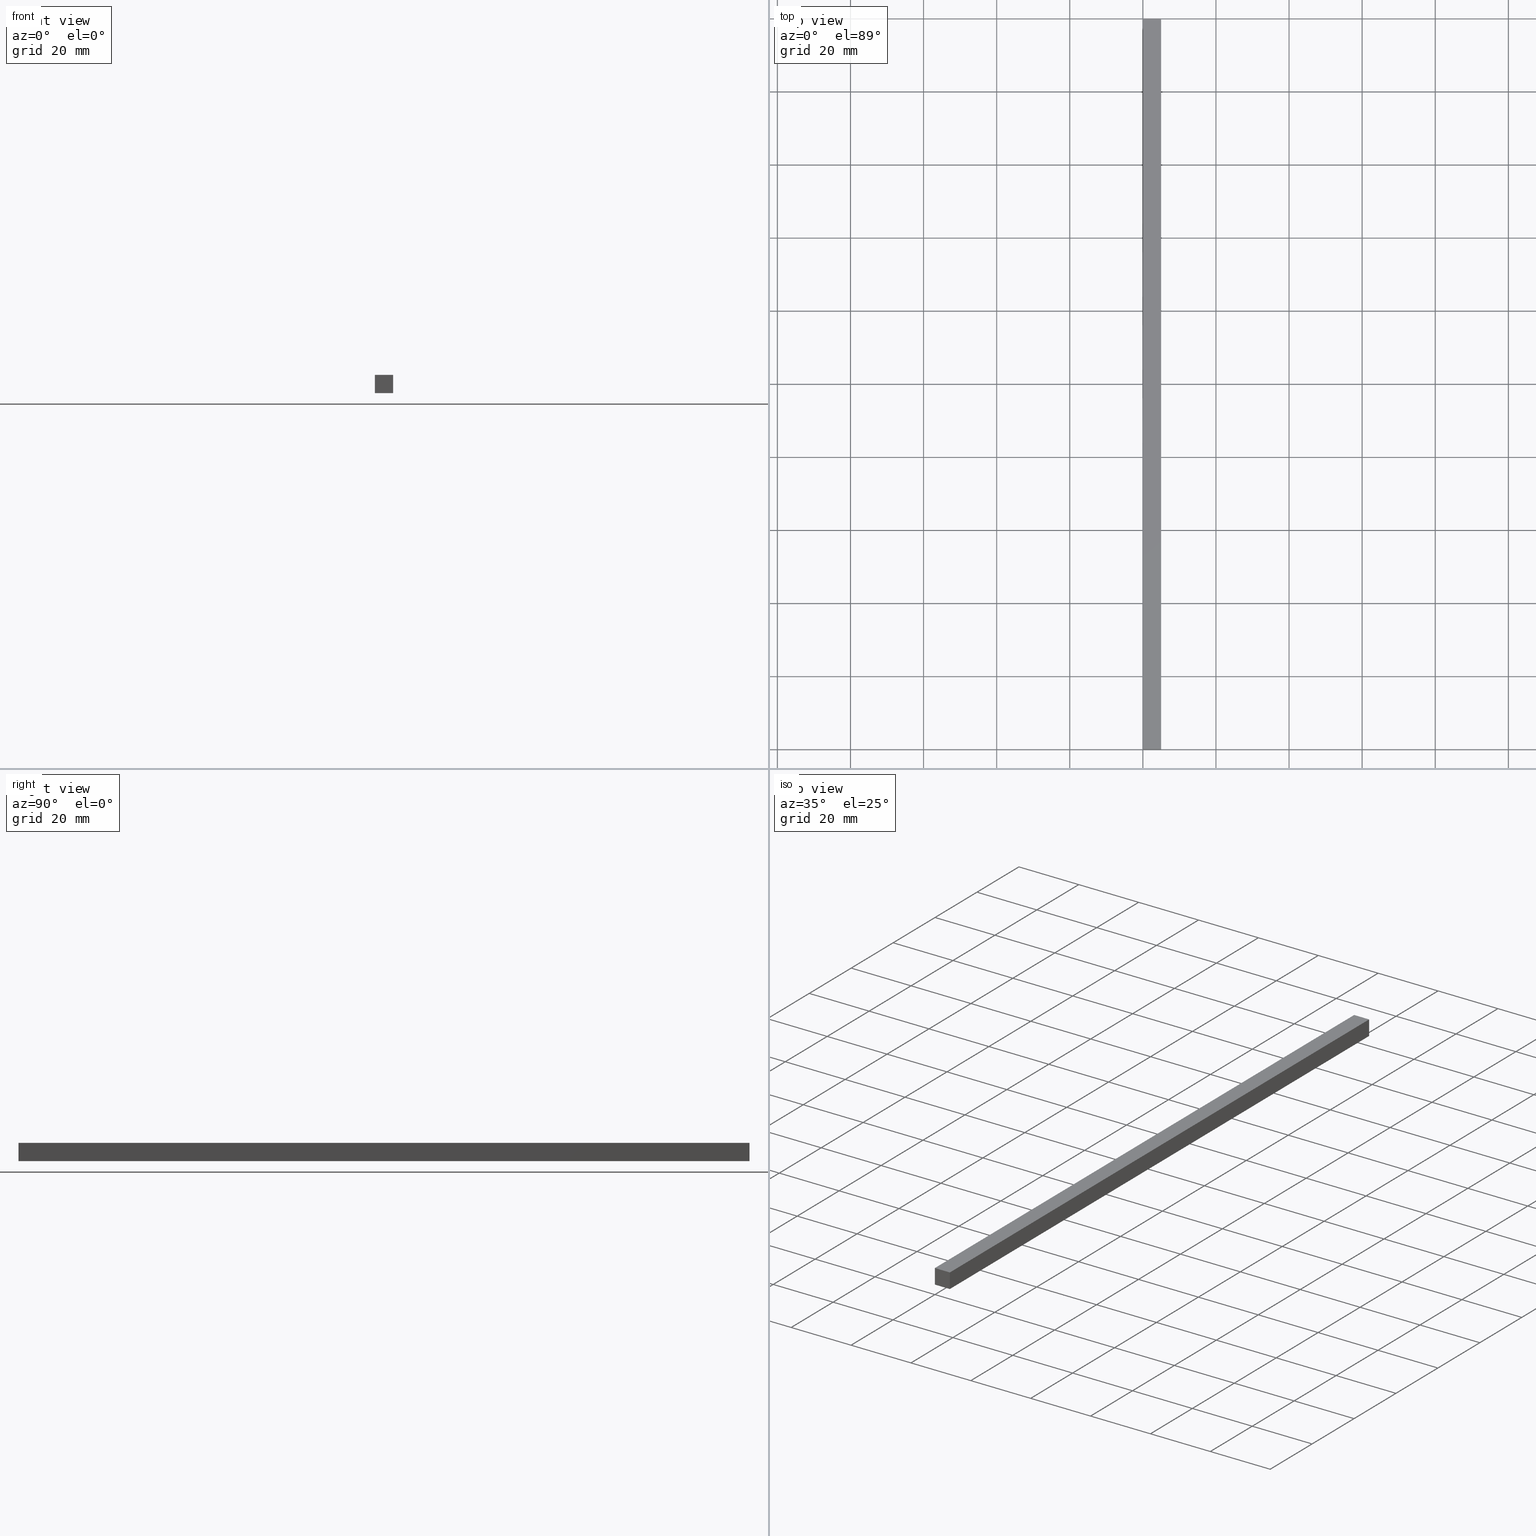
[diagram: canonical four-view strip — front | top / right | iso, engineering-drawing reading convention]
A machine part, canonical four-view strip (front | top / right | iso — engineering-drawing reading convention). The complete STEP part file that produces these views, byte-faithful:
ISO-10303-21;
HEADER;
FILE_DESCRIPTION (( 'STEP AP214' ),
    '1' );
FILE_NAME ('TM_340W_1.STEP',
    '2016-05-09T07:20:32',
    ( '' ),
    ( '' ),
    'SwSTEP 2.0',
    'SolidWorks 2015',
    '' );
FILE_SCHEMA (( 'AUTOMOTIVE_DESIGN' ));
ENDSEC;

DATA;
#1 = DIRECTION ( 'NONE',  ( -0.0000000000000000000, 1.000000000000000000, 0.0000000000000000000 ) ) ;
#2 = EDGE_CURVE ( 'NONE', #67, #123, #83, .T. ) ;
#3 = ORIENTED_EDGE ( 'NONE', *, *, #2, .F. ) ;
#4 = SHAPE_DEFINITION_REPRESENTATION ( #61, #196 ) ;
#5 = DIRECTION ( 'NONE',  ( -1.000000000000000000, 0.0000000000000000000, 0.0000000000000000000 ) ) ;
#6 = PRODUCT_DEFINITION_SHAPE ( 'NONE', 'NONE',  #239 ) ;
#7 = LINE ( 'NONE', #215, #227 ) ;
#8 = VECTOR ( 'NONE', #167, 1000.000000000000000 ) ;
#9 = AXIS2_PLACEMENT_3D ( 'NONE', #131, #205, #14 ) ;
#10 = DIRECTION ( 'NONE',  ( -0.0000000000000000000, 1.000000000000000000, 0.0000000000000000000 ) ) ;
#11 = CARTESIAN_POINT ( 'NONE',  ( 0.0000000000000000000, 0.0000000000000000000, 0.0000000000000000000 ) ) ;
#12 = ORIENTED_EDGE ( 'NONE', *, *, #87, .F. ) ;
#13 = EDGE_CURVE ( 'NONE', #67, #121, #92, .T. ) ;
#14 = DIRECTION ( 'NONE',  ( 1.000000000000000000, 0.0000000000000000000, 0.0000000000000000000 ) ) ;
#15 = FILL_AREA_STYLE ('',( #101 ) ) ;
#16 = EDGE_CURVE ( 'NONE', #121, #159, #7, .T. ) ;
#17 =( REPRESENTATION_RELATIONSHIP ('NONE','NONE', #230, #196 ) REPRESENTATION_RELATIONSHIP_WITH_TRANSFORMATION ( #163 )SHAPE_REPRESENTATION_RELATIONSHIP( ) );
#18 = CARTESIAN_POINT ( 'NONE',  ( 5.000000000000000000, 1000.000000000000000, 0.0000000000000000000 ) ) ;
#19 = SURFACE_SIDE_STYLE ('',( #172 ) ) ;
#20 = CARTESIAN_POINT ( 'NONE',  ( 0.0000000000000000000, 0.0000000000000000000, 0.0000000000000000000 ) ) ;
#21 = STYLED_ITEM ( 'NONE', ( #22 ), #184 ) ;
#22 = PRESENTATION_STYLE_ASSIGNMENT (( #50 ) ) ;
#23 = CARTESIAN_POINT ( 'NONE',  ( 5.000000000000000000, 0.0000000000000000000, 0.0000000000000000000 ) ) ;
#24 = EDGE_CURVE ( 'NONE', #124, #67, #89, .T. ) ;
#25 = ORIENTED_EDGE ( 'NONE', *, *, #16, .T. ) ;
#26 = EDGE_CURVE ( 'NONE', #121, #142, #64, .T. ) ;
#27 = DIRECTION ( 'NONE',  ( 0.0000000000000000000, 0.0000000000000000000, 1.000000000000000000 ) ) ;
#28 = PLANE ( 'NONE',  #140 ) ;
#29 = EDGE_LOOP ( 'NONE', ( #155, #3, #198, #216 ) ) ;
#30 = PRESENTATION_LAYER_ASSIGNMENT (  '', '', ( #21 ) ) ;
#31 = CARTESIAN_POINT ( 'NONE',  ( 0.0000000000000000000, 0.0000000000000000000, 0.0000000000000000000 ) ) ;
#32 = APPLICATION_PROTOCOL_DEFINITION ( 'draft international standard', 'automotive_design', 1998, #129 ) ;
#33 = FACE_OUTER_BOUND ( 'NONE', #194, .T. ) ;
#34 = DIRECTION ( 'NONE',  ( 0.0000000000000000000, -1.000000000000000000, 0.0000000000000000000 ) ) ;
#35 = CARTESIAN_POINT ( 'NONE',  ( 5.000000000000000000, 0.0000000000000000000, 5.000000000000000000 ) ) ;
#36 = CARTESIAN_POINT ( 'NONE',  ( 0.0000000000000000000, 0.0000000000000000000, 0.0000000000000000000 ) ) ;
#37 = DIRECTION ( 'NONE',  ( 1.000000000000000000, 0.0000000000000000000, 0.0000000000000000000 ) ) ;
#38 = UNCERTAINTY_MEASURE_WITH_UNIT (LENGTH_MEASURE( 1.000000000000000100E-005 ), #117, 'distance_accuracy_value', 'NONE');
#39 = SURFACE_STYLE_FILL_AREA ( #15 ) ;
#40 =( LENGTH_UNIT ( ) NAMED_UNIT ( * ) SI_UNIT ( .MILLI., .METRE. ) );
#41 = EDGE_CURVE ( 'NONE', #142, #186, #173, .T. ) ;
#42 = ORIENTED_EDGE ( 'NONE', *, *, #220, .F. ) ;
#43 = LINE ( 'NONE', #18, #8 ) ;
#44 = MECHANICAL_DESIGN_GEOMETRIC_PRESENTATION_REPRESENTATION (  '', ( #21 ), #62 ) ;
#45 = ORIENTED_EDGE ( 'NONE', *, *, #177, .T. ) ;
#46 = LINE ( 'NONE', #35, #154 ) ;
#47 = SHAPE_REPRESENTATION_RELATIONSHIP ( 'NONE' , 'NONE' ,  #196, #184 ) ;
#48 = ADVANCED_FACE ( 'NONE', ( #222 ), #132, .T. ) ;
#49 =( LENGTH_UNIT ( ) NAMED_UNIT ( * ) SI_UNIT ( .MILLI., .METRE. ) );
#50 = SURFACE_STYLE_USAGE ( .BOTH. , #82 ) ;
#51 = SHAPE_DEFINITION_REPRESENTATION ( #133, #230 ) ;
#52 = DIRECTION ( 'NONE',  ( 0.0000000000000000000, 0.0000000000000000000, -1.000000000000000000 ) ) ;
#53 = ORIENTED_EDGE ( 'NONE', *, *, #41, .F. ) ;
#54 = FACE_OUTER_BOUND ( 'NONE', #103, .T. ) ;
#55 = PLANE ( 'NONE',  #188 ) ;
#56 = EDGE_CURVE ( 'NONE', #159, #186, #84, .T. ) ;
#57 = PRODUCT_CONTEXT ( 'NONE', #202, 'mechanical' ) ;
#58 = ORIENTED_EDGE ( 'NONE', *, *, #177, .F. ) ;
#59 = DIRECTION ( 'NONE',  ( 0.0000000000000000000, 0.0000000000000000000, -1.000000000000000000 ) ) ;
#60 = DIRECTION ( 'NONE',  ( 0.0000000000000000000, 0.0000000000000000000, -1.000000000000000000 ) ) ;
#61 = PRODUCT_DEFINITION_SHAPE ( 'NONE', 'NONE',  #144 ) ;
#62 =( GEOMETRIC_REPRESENTATION_CONTEXT ( 3 ) GLOBAL_UNCERTAINTY_ASSIGNED_CONTEXT ( ( #157 ) ) GLOBAL_UNIT_ASSIGNED_CONTEXT ( ( #49, #195, #127 ) ) REPRESENTATION_CONTEXT ( 'NONE', 'WORKASPACE' ) );
#63 = CARTESIAN_POINT ( 'NONE',  ( 5.000000000000000000, 1000.000000000000000, 5.000000000000000000 ) ) ;
#64 = LINE ( 'NONE', #126, #182 ) ;
#65 = FACE_OUTER_BOUND ( 'NONE', #156, .T. ) ;
#66 = CLOSED_SHELL ( 'NONE', ( #70, #122, #77, #73, #48, #98 ) ) ;
#67 = VERTEX_POINT ( 'NONE', #149 ) ;
#68 = AXIS2_PLACEMENT_3D ( 'NONE', #190, #10, #214 ) ;
#69 = UNCERTAINTY_MEASURE_WITH_UNIT (LENGTH_MEASURE( 1.000000000000000100E-005 ), #40, 'distance_accuracy_value', 'NONE');
#70 = ADVANCED_FACE ( 'NONE', ( #33 ), #85, .F. ) ;
#71 = VECTOR ( 'NONE', #76, 1000.000000000000000 ) ;
#72 = ORIENTED_EDGE ( 'NONE', *, *, #2, .T. ) ;
#73 = ADVANCED_FACE ( 'NONE', ( #65 ), #113, .F. ) ;
#74 = CARTESIAN_POINT ( 'NONE',  ( 5.000000000000000000, 200.0000000000000000, 5.000000000000000000 ) ) ;
#75 = PRODUCT_DEFINITION_CONTEXT ( 'detailed design', #148, 'design' ) ;
#76 = DIRECTION ( 'NONE',  ( 0.0000000000000000000, -1.000000000000000000, 0.0000000000000000000 ) ) ;
#77 = ADVANCED_FACE ( 'NONE', ( #235 ), #28, .F. ) ;
#78 = CARTESIAN_POINT ( 'NONE',  ( 5.000000000000000000, 1000.000000000000000, 0.0000000000000000000 ) ) ;
#79 = LINE ( 'NONE', #143, #209 ) ;
#80 = DIRECTION ( 'NONE',  ( 0.0000000000000000000, 0.0000000000000000000, 1.000000000000000000 ) ) ;
#81 = COLOUR_RGB ( '',0.7921568627450980000, 0.8196078431372548800, 0.9333333333333333500 ) ;
#82 = SURFACE_SIDE_STYLE ('',( #39 ) ) ;
#83 = LINE ( 'NONE', #174, #211 ) ;
#84 = LINE ( 'NONE', #63, #71 ) ;
#85 = PLANE ( 'NONE',  #94 ) ;
#86 = ORIENTED_EDGE ( 'NONE', *, *, #13, .T. ) ;
#87 = EDGE_CURVE ( 'NONE', #124, #108, #43, .T. ) ;
#88 = COLOUR_RGB ( '',0.7921568627450980000, 0.8196078431372548800, 0.9333333333333333500 ) ;
#89 = LINE ( 'NONE', #217, #128 ) ;
#90 = ORIENTED_EDGE ( 'NONE', *, *, #26, .T. ) ;
#91 = VECTOR ( 'NONE', #115, 1000.000000000000000 ) ;
#92 = LINE ( 'NONE', #150, #105 ) ;
#93 = SURFACE_STYLE_USAGE ( .BOTH. , #19 ) ;
#94 = AXIS2_PLACEMENT_3D ( 'NONE', #219, #200, #5 ) ;
#95 = PRESENTATION_STYLE_ASSIGNMENT (( #93 ) ) ;
#96 = FILL_AREA_STYLE_COLOUR ( '', #81 ) ;
#97 =( NAMED_UNIT ( * ) SI_UNIT ( $, .STERADIAN. ) SOLID_ANGLE_UNIT ( ) );
#98 = ADVANCED_FACE ( 'NONE', ( #54 ), #162, .F. ) ;
#99 = VECTOR ( 'NONE', #59, 1000.000000000000000 ) ;
#100 = EDGE_CURVE ( 'NONE', #186, #108, #46, .T. ) ;
#101 = FILL_AREA_STYLE_COLOUR ( '', #88 ) ;
#102 =( NAMED_UNIT ( * ) PLANE_ANGLE_UNIT ( ) SI_UNIT ( $, .RADIAN. ) );
#103 = EDGE_LOOP ( 'NONE', ( #53, #192, #42, #104 ) ) ;
#104 = ORIENTED_EDGE ( 'NONE', *, *, #100, .F. ) ;
#105 = VECTOR ( 'NONE', #189, 1000.000000000000000 ) ;
#106 = AXIS2_PLACEMENT_3D ( 'NONE', #31, #224, #130 ) ;
#107 = PRODUCT ( 'rubber foam', 'rubber foam', '', ( #57 ) ) ;
#108 = VERTEX_POINT ( 'NONE', #23 ) ;
#109 = CARTESIAN_POINT ( 'NONE',  ( 0.0000000000000000000, 0.0000000000000000000, 0.0000000000000000000 ) ) ;
#110 = AXIS2_PLACEMENT_3D ( 'NONE', #36, #185, #207 ) ;
#111 = DIRECTION ( 'NONE',  ( 0.0000000000000000000, 0.0000000000000000000, 1.000000000000000000 ) ) ;
#112 = EDGE_LOOP ( 'NONE', ( #231, #12, #58, #146 ) ) ;
#113 = PLANE ( 'NONE',  #118 ) ;
#114 = APPLICATION_CONTEXT ( 'automotive_design' ) ;
#115 = DIRECTION ( 'NONE',  ( 1.000000000000000000, 0.0000000000000000000, 0.0000000000000000000 ) ) ;
#116 = ORIENTED_EDGE ( 'NONE', *, *, #26, .F. ) ;
#117 =( LENGTH_UNIT ( ) NAMED_UNIT ( * ) SI_UNIT ( .MILLI., .METRE. ) );
#118 = AXIS2_PLACEMENT_3D ( 'NONE', #145, #201, #60 ) ;
#119 = CARTESIAN_POINT ( 'NONE',  ( 0.0000000000000000000, 0.0000000000000000000, 5.000000000000000000 ) ) ;
#120 = UNCERTAINTY_MEASURE_WITH_UNIT (LENGTH_MEASURE( 1.000000000000000100E-005 ), #160, 'distance_accuracy_value', 'NONE');
#121 = VERTEX_POINT ( 'NONE', #171 ) ;
#122 = ADVANCED_FACE ( 'NONE', ( #213 ), #55, .F. ) ;
#123 = VERTEX_POINT ( 'NONE', #11 ) ;
#124 = VERTEX_POINT ( 'NONE', #223 ) ;
#125 =( GEOMETRIC_REPRESENTATION_CONTEXT ( 3 ) GLOBAL_UNCERTAINTY_ASSIGNED_CONTEXT ( ( #69 ) ) GLOBAL_UNIT_ASSIGNED_CONTEXT ( ( #40, #158, #225 ) ) REPRESENTATION_CONTEXT ( 'NONE', 'WORKASPACE' ) );
#126 = CARTESIAN_POINT ( 'NONE',  ( 0.0000000000000000000, 1000.000000000000000, 5.000000000000000000 ) ) ;
#127 =( NAMED_UNIT ( * ) SI_UNIT ( $, .STERADIAN. ) SOLID_ANGLE_UNIT ( ) );
#128 = VECTOR ( 'NONE', #147, 1000.000000000000000 ) ;
#129 = APPLICATION_CONTEXT ( 'automotive_design' ) ;
#130 = DIRECTION ( 'NONE',  ( 1.000000000000000000, 0.0000000000000000000, 0.0000000000000000000 ) ) ;
#131 = CARTESIAN_POINT ( 'NONE',  ( 0.0000000000000000000, 0.0000000000000000000, 0.0000000000000000000 ) ) ;
#132 = PLANE ( 'NONE',  #68 ) ;
#133 = PRODUCT_DEFINITION_SHAPE ( 'NONE', 'NONE',  #175 ) ;
#134 = AXIS2_PLACEMENT_3D ( 'NONE', #203, #80, #168 ) ;
#135 = ORIENTED_EDGE ( 'NONE', *, *, #24, .T. ) ;
#136 = LINE ( 'NONE', #233, #99 ) ;
#137 = VECTOR ( 'NONE', #111, 1000.000000000000000 ) ;
#138 = ORIENTED_EDGE ( 'NONE', *, *, #232, .T. ) ;
#139 = EDGE_LOOP ( 'NONE', ( #25, #45, #135, #86 ) ) ;
#140 = AXIS2_PLACEMENT_3D ( 'NONE', #78, #27, #212 ) ;
#141 = CARTESIAN_POINT ( 'NONE',  ( 0.0000000000000000000, 0.0000000000000000000, 5.000000000000000000 ) ) ;
#142 = VERTEX_POINT ( 'NONE', #141 ) ;
#143 = CARTESIAN_POINT ( 'NONE',  ( 5.000000000000000000, 0.0000000000000000000, 0.0000000000000000000 ) ) ;
#144 = PRODUCT_DEFINITION ( 'UNKNOWN', '', #208, #236 ) ;
#145 = CARTESIAN_POINT ( 'NONE',  ( 0.0000000000000000000, 1000.000000000000000, 0.0000000000000000000 ) ) ;
#146 = ORIENTED_EDGE ( 'NONE', *, *, #56, .T. ) ;
#147 = DIRECTION ( 'NONE',  ( -1.000000000000000000, 0.0000000000000000000, 0.0000000000000000000 ) ) ;
#148 = APPLICATION_CONTEXT ( 'automotive_design' ) ;
#149 = CARTESIAN_POINT ( 'NONE',  ( 0.0000000000000000000, 200.0000000000000000, 0.0000000000000000000 ) ) ;
#150 = CARTESIAN_POINT ( 'NONE',  ( 0.0000000000000000000, 200.0000000000000000, 0.0000000000000000000 ) ) ;
#151 = LINE ( 'NONE', #20, #137 ) ;
#152 = DIRECTION ( 'NONE',  ( 1.000000000000000000, 0.0000000000000000000, 0.0000000000000000000 ) ) ;
#153 = DIRECTION ( 'NONE',  ( 0.0000000000000000000, 0.0000000000000000000, 1.000000000000000000 ) ) ;
#154 = VECTOR ( 'NONE', #52, 1000.000000000000000 ) ;
#155 = ORIENTED_EDGE ( 'NONE', *, *, #220, .T. ) ;
#156 = EDGE_LOOP ( 'NONE', ( #138, #116, #191, #72 ) ) ;
#157 = UNCERTAINTY_MEASURE_WITH_UNIT (LENGTH_MEASURE( 1.000000000000000100E-005 ), #49, 'distance_accuracy_value', 'NONE');
#158 =( NAMED_UNIT ( * ) PLANE_ANGLE_UNIT ( ) SI_UNIT ( $, .RADIAN. ) );
#159 = VERTEX_POINT ( 'NONE', #74 ) ;
#160 =( LENGTH_UNIT ( ) NAMED_UNIT ( * ) SI_UNIT ( .MILLI., .METRE. ) );
#161 = AXIS2_PLACEMENT_3D ( 'NONE', #109, #1, #152 ) ;
#162 = PLANE ( 'NONE',  #161 ) ;
#163 = ITEM_DEFINED_TRANSFORMATION ( 'NONE', 'NONE', #110,  #9 ) ;
#164 = CARTESIAN_POINT ( 'NONE',  ( 5.000000000000000000, 0.0000000000000000000, 5.000000000000000000 ) ) ;
#165 = DIRECTION ( 'NONE',  ( -1.000000000000000000, 0.0000000000000000000, 0.0000000000000000000 ) ) ;
#166 = APPLICATION_PROTOCOL_DEFINITION ( 'draft international standard', 'automotive_design', 1998, #148 ) ;
#167 = DIRECTION ( 'NONE',  ( 0.0000000000000000000, -1.000000000000000000, 0.0000000000000000000 ) ) ;
#168 = DIRECTION ( 'NONE',  ( 1.000000000000000000, 0.0000000000000000000, 0.0000000000000000000 ) ) ;
#169 = ORIENTED_EDGE ( 'NONE', *, *, #56, .F. ) ;
#170 = CARTESIAN_POINT ( 'NONE',  ( 5.000000000000000000, 1000.000000000000000, 5.000000000000000000 ) ) ;
#171 = CARTESIAN_POINT ( 'NONE',  ( 0.0000000000000000000, 200.0000000000000000, 5.000000000000000000 ) ) ;
#172 = SURFACE_STYLE_FILL_AREA ( #228 ) ;
#173 = LINE ( 'NONE', #119, #91 ) ;
#174 = CARTESIAN_POINT ( 'NONE',  ( 0.0000000000000000000, 1000.000000000000000, 0.0000000000000000000 ) ) ;
#175 = PRODUCT_DEFINITION ( 'UNKNOWN', '', #183, #75 ) ;
#176 = PRODUCT ( 'TM_340W_1', 'TM_340W_1', '', ( #238 ) ) ;
#177 = EDGE_CURVE ( 'NONE', #159, #124, #136, .T. ) ;
#178 = STYLED_ITEM ( 'NONE', ( #95 ), #179 ) ;
#179 = MANIFOLD_SOLID_BREP ( '���߰�1', #66 ) ;
#180 = ORIENTED_EDGE ( 'NONE', *, *, #41, .T. ) ;
#181 = DIRECTION ( 'NONE',  ( 0.0000000000000000000, -1.000000000000000000, 0.0000000000000000000 ) ) ;
#182 = VECTOR ( 'NONE', #34, 1000.000000000000000 ) ;
#183 = PRODUCT_DEFINITION_FORMATION_WITH_SPECIFIED_SOURCE ( 'ANY', '', #176, .NOT_KNOWN. ) ;
#184 = ADVANCED_BREP_SHAPE_REPRESENTATION ( '', ( #179, #9 ), #237 ) ;
#185 = DIRECTION ( 'NONE',  ( 0.0000000000000000000, 0.0000000000000000000, 1.000000000000000000 ) ) ;
#186 = VERTEX_POINT ( 'NONE', #164 ) ;
#187 = APPLICATION_PROTOCOL_DEFINITION ( 'draft international standard', 'automotive_design', 1998, #202 ) ;
#188 = AXIS2_PLACEMENT_3D ( 'NONE', #170, #206, #153 ) ;
#189 = DIRECTION ( 'NONE',  ( 0.0000000000000000000, 0.0000000000000000000, 1.000000000000000000 ) ) ;
#190 = CARTESIAN_POINT ( 'NONE',  ( 0.0000000000000000000, 200.0000000000000000, 0.0000000000000000000 ) ) ;
#191 = ORIENTED_EDGE ( 'NONE', *, *, #13, .F. ) ;
#192 = ORIENTED_EDGE ( 'NONE', *, *, #232, .F. ) ;
#193 = PRODUCT_RELATED_PRODUCT_CATEGORY ( 'part', '', ( #176 ) ) ;
#194 = EDGE_LOOP ( 'NONE', ( #180, #169, #197, #90 ) ) ;
#195 =( NAMED_UNIT ( * ) PLANE_ANGLE_UNIT ( ) SI_UNIT ( $, .RADIAN. ) );
#196 = SHAPE_REPRESENTATION ( 'rubber foam', ( #9 ), #237 ) ;
#197 = ORIENTED_EDGE ( 'NONE', *, *, #16, .F. ) ;
#198 = ORIENTED_EDGE ( 'NONE', *, *, #24, .F. ) ;
#199 = PRESENTATION_LAYER_ASSIGNMENT (  '', '', ( #178 ) ) ;
#200 = DIRECTION ( 'NONE',  ( 0.0000000000000000000, 0.0000000000000000000, -1.000000000000000000 ) ) ;
#201 = DIRECTION ( 'NONE',  ( 1.000000000000000000, 0.0000000000000000000, 0.0000000000000000000 ) ) ;
#202 = APPLICATION_CONTEXT ( 'automotive_design' ) ;
#203 = CARTESIAN_POINT ( 'NONE',  ( 0.0000000000000000000, 0.0000000000000000000, 0.0000000000000000000 ) ) ;
#204 =( NAMED_UNIT ( * ) SI_UNIT ( $, .STERADIAN. ) SOLID_ANGLE_UNIT ( ) );
#205 = DIRECTION ( 'NONE',  ( 0.0000000000000000000, 0.0000000000000000000, 1.000000000000000000 ) ) ;
#206 = DIRECTION ( 'NONE',  ( -1.000000000000000000, 0.0000000000000000000, 0.0000000000000000000 ) ) ;
#207 = DIRECTION ( 'NONE',  ( 1.000000000000000000, 0.0000000000000000000, 0.0000000000000000000 ) ) ;
#208 = PRODUCT_DEFINITION_FORMATION_WITH_SPECIFIED_SOURCE ( 'ANY', '', #107, .NOT_KNOWN. ) ;
#209 = VECTOR ( 'NONE', #165, 1000.000000000000000 ) ;
#210 = MECHANICAL_DESIGN_GEOMETRIC_PRESENTATION_REPRESENTATION (  '', ( #178 ), #226 ) ;
#211 = VECTOR ( 'NONE', #181, 1000.000000000000000 ) ;
#212 = DIRECTION ( 'NONE',  ( 1.000000000000000000, 0.0000000000000000000, 0.0000000000000000000 ) ) ;
#213 = FACE_OUTER_BOUND ( 'NONE', #112, .T. ) ;
#214 = DIRECTION ( 'NONE',  ( 1.000000000000000000, 0.0000000000000000000, 0.0000000000000000000 ) ) ;
#215 = CARTESIAN_POINT ( 'NONE',  ( 0.0000000000000000000, 200.0000000000000000, 5.000000000000000000 ) ) ;
#216 = ORIENTED_EDGE ( 'NONE', *, *, #87, .T. ) ;
#217 = CARTESIAN_POINT ( 'NONE',  ( 5.000000000000000000, 200.0000000000000000, 0.0000000000000000000 ) ) ;
#218 = PRODUCT_RELATED_PRODUCT_CATEGORY ( 'part', '', ( #107 ) ) ;
#219 = CARTESIAN_POINT ( 'NONE',  ( 0.0000000000000000000, 1000.000000000000000, 5.000000000000000000 ) ) ;
#220 = EDGE_CURVE ( 'NONE', #108, #123, #79, .T. ) ;
#221 = APPLICATION_PROTOCOL_DEFINITION ( 'draft international standard', 'automotive_design', 1998, #114 ) ;
#222 = FACE_OUTER_BOUND ( 'NONE', #139, .T. ) ;
#223 = CARTESIAN_POINT ( 'NONE',  ( 5.000000000000000000, 200.0000000000000000, 0.0000000000000000000 ) ) ;
#224 = DIRECTION ( 'NONE',  ( 0.0000000000000000000, 0.0000000000000000000, 1.000000000000000000 ) ) ;
#225 =( NAMED_UNIT ( * ) SI_UNIT ( $, .STERADIAN. ) SOLID_ANGLE_UNIT ( ) );
#226 =( GEOMETRIC_REPRESENTATION_CONTEXT ( 3 ) GLOBAL_UNCERTAINTY_ASSIGNED_CONTEXT ( ( #38 ) ) GLOBAL_UNIT_ASSIGNED_CONTEXT ( ( #117, #234, #204 ) ) REPRESENTATION_CONTEXT ( 'NONE', 'WORKASPACE' ) );
#227 = VECTOR ( 'NONE', #37, 1000.000000000000000 ) ;
#228 = FILL_AREA_STYLE ('',( #96 ) ) ;
#229 = CONTEXT_DEPENDENT_SHAPE_REPRESENTATION ( #17, #6 ) ;
#230 = SHAPE_REPRESENTATION ( 'TM_340W_1', ( #134, #110 ), #125 ) ;
#231 = ORIENTED_EDGE ( 'NONE', *, *, #100, .T. ) ;
#232 = EDGE_CURVE ( 'NONE', #123, #142, #151, .T. ) ;
#233 = CARTESIAN_POINT ( 'NONE',  ( 5.000000000000000000, 200.0000000000000000, 5.000000000000000000 ) ) ;
#234 =( NAMED_UNIT ( * ) PLANE_ANGLE_UNIT ( ) SI_UNIT ( $, .RADIAN. ) );
#235 = FACE_OUTER_BOUND ( 'NONE', #29, .T. ) ;
#236 = PRODUCT_DEFINITION_CONTEXT ( 'detailed design', #114, 'design' ) ;
#237 =( GEOMETRIC_REPRESENTATION_CONTEXT ( 3 ) GLOBAL_UNCERTAINTY_ASSIGNED_CONTEXT ( ( #120 ) ) GLOBAL_UNIT_ASSIGNED_CONTEXT ( ( #160, #102, #97 ) ) REPRESENTATION_CONTEXT ( 'NONE', 'WORKASPACE' ) );
#238 = PRODUCT_CONTEXT ( 'NONE', #129, 'mechanical' ) ;
#239 = NEXT_ASSEMBLY_USAGE_OCCURRENCE ( 'NAUO1', ' ', ' ', #175, #144, $ ) ;
ENDSEC;
END-ISO-10303-21;
